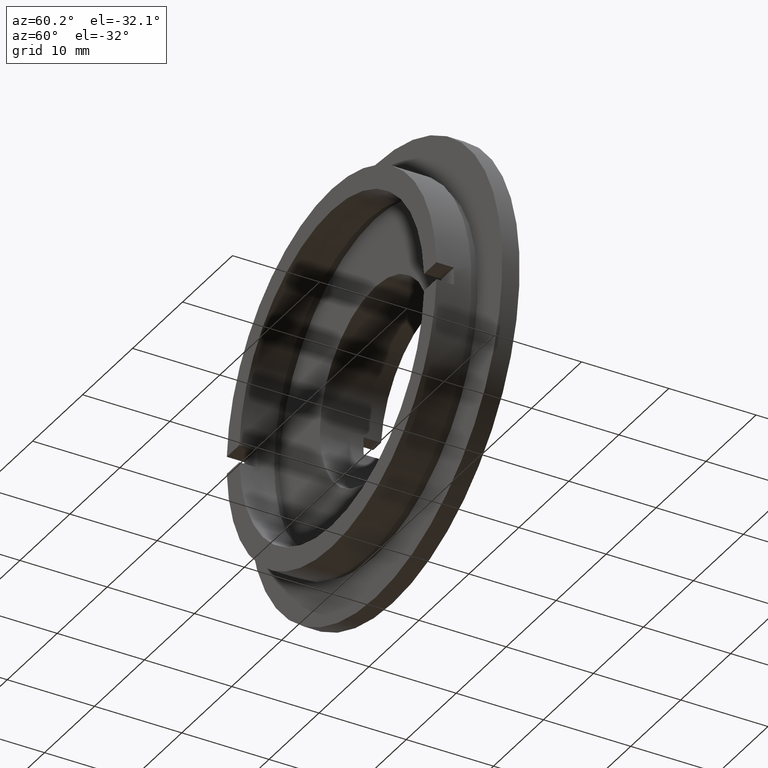
[diagram: clean part render]
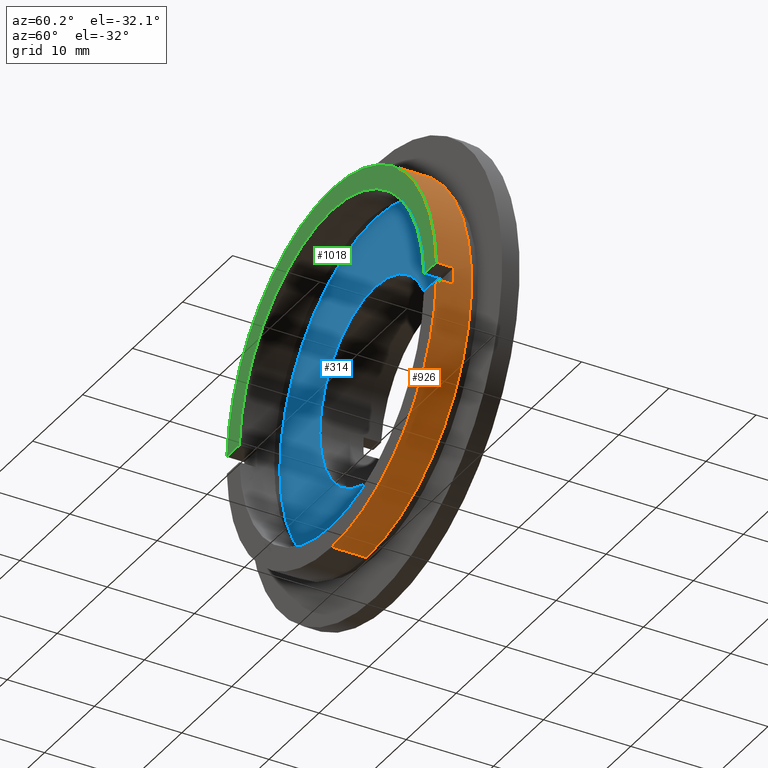
[diagram: same view with three faces highlighted in distinct colors, each labeled with its STEP entity id]
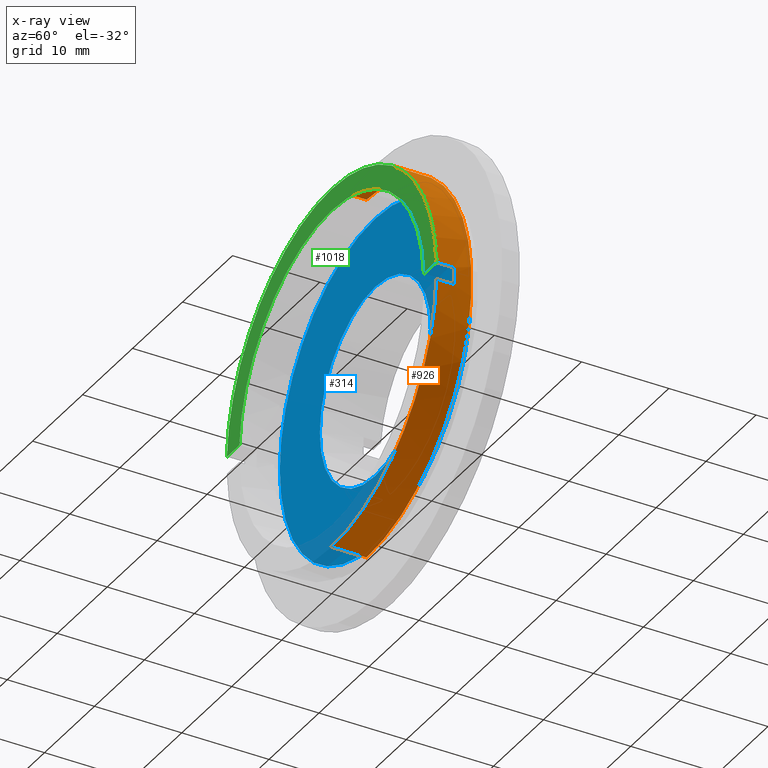
[diagram: x-ray of the same camera — body ghosted, the three highlighted faces saturated]
A machine part, auxiliary view with three faces highlighted in distinct colors.
The next image is the same camera in x-ray (body ghosted, the three faces saturated) — at least one of them is partly hidden behind the body in this view.
Their STEP definitions:

[orange] entity #926 — the highlighted cylindrical surface (partial cylindrical patch) has radius 21 mm, axis along (-0, 1, -0).
#29 = ORIENTED_EDGE ( 'NONE', *, *, #58, .F. ) ;
#46 = CARTESIAN_POINT ( 'NONE',  ( 0.0000000000000000000, 0.0000000000000000000, 20.99999999999999600 ) ) ;
#53 = EDGE_CURVE ( 'NONE', #515, #106, #812, .T. ) ;
#54 = ORIENTED_EDGE ( 'NONE', *, *, #53, .T. ) ;
#58 = EDGE_CURVE ( 'NONE', #1116, #815, #1170, .T. ) ;
#62 = LINE ( 'NONE', #547, #175 ) ;
#63 = EDGE_CURVE ( 'NONE', #107, #941, #1297, .T. ) ;
#106 = VERTEX_POINT ( 'NONE', #436 ) ;
#107 = VERTEX_POINT ( 'NONE', #46 ) ;
#175 = VECTOR ( 'NONE', #826, 1000.000000000000000 ) ;
#201 = EDGE_LOOP ( 'NONE', ( #54, #392, #1031, #325, #714, #29, #238, #618 ) ) ;
#238 = ORIENTED_EDGE ( 'NONE', *, *, #1189, .F. ) ;
#242 = LINE ( 'NONE', #749, #1022 ) ;
#243 = CARTESIAN_POINT ( 'NONE',  ( 0.0000000000000000000, 1.999999999999998200, 0.0000000000000000000 ) ) ;
#249 = DIRECTION ( 'NONE',  ( -2.220446049250313100E-014, 0.0000000000000000000, 1.000000000000000000 ) ) ;
#257 = DIRECTION ( 'NONE',  ( -0.0000000000000000000, -1.000000000000000000, -0.0000000000000000000 ) ) ;
#268 = VECTOR ( 'NONE', #928, 1000.000000000000000 ) ;
#280 = AXIS2_PLACEMENT_3D ( 'NONE', #1250, #1262, #1264 ) ;
#325 = ORIENTED_EDGE ( 'NONE', *, *, #63, .F. ) ;
#350 = VECTOR ( 'NONE', #1057, 1000.000000000000000 ) ;
#354 = CARTESIAN_POINT ( 'NONE',  ( 0.0000000000000000000, 0.0000000000000000000, 0.0000000000000000000 ) ) ;
#392 = ORIENTED_EDGE ( 'NONE', *, *, #951, .T. ) ;
#395 = CIRCLE ( 'NONE', #280, 20.99999999999999600 ) ;
#399 = EDGE_CURVE ( 'NONE', #941, #801, #395, .T. ) ;
#436 = CARTESIAN_POINT ( 'NONE',  ( 2.571758278209441300E-015, 0.0000000000000000000, -20.99999999999999600 ) ) ;
#457 = CARTESIAN_POINT ( 'NONE',  ( 20.97617696340303100, 0.0000000000000000000, -1.000000000000000000 ) ) ;
#467 = CARTESIAN_POINT ( 'NONE',  ( 20.97617696340303100, 1.999999999999998200, 1.000000000000000200 ) ) ;
#475 = CIRCLE ( 'NONE', #883, 20.99999999999999600 ) ;
#515 = VERTEX_POINT ( 'NONE', #457 ) ;
#547 = CARTESIAN_POINT ( 'NONE',  ( 20.97617696340302700, 22.67749945107591400, -0.9999999999999943400 ) ) ;
#609 = CARTESIAN_POINT ( 'NONE',  ( 20.97617696340302400, 2.000000000000000000, -0.9999999999999995600 ) ) ;
#610 = AXIS2_PLACEMENT_3D ( 'NONE', #354, #1074, #1010 ) ;
#618 = ORIENTED_EDGE ( 'NONE', *, *, #710, .F. ) ;
#633 = DIRECTION ( 'NONE',  ( -0.0000000000000000000, 1.000000000000000000, -0.0000000000000000000 ) ) ;
#642 = AXIS2_PLACEMENT_3D ( 'NONE', #243, #257, #249 ) ;
#678 = CARTESIAN_POINT ( 'NONE',  ( 0.0000000000000000000, 4.000000000000000000, 20.99999999999999600 ) ) ;
#684 = DIRECTION ( 'NONE',  ( 0.0000000000000000000, 0.0000000000000000000, 1.000000000000000000 ) ) ;
#710 = EDGE_CURVE ( 'NONE', #515, #960, #62, .T. ) ;
#714 = ORIENTED_EDGE ( 'NONE', *, *, #1062, .T. ) ;
#749 = CARTESIAN_POINT ( 'NONE',  ( 2.571758278209441300E-015, 22.67749945107591400, -20.99999999999999600 ) ) ;
#753 = DIRECTION ( 'NONE',  ( 0.0000000000000000000, 0.0000000000000000000, 1.000000000000000000 ) ) ;
#762 = DIRECTION ( 'NONE',  ( -0.0000000000000000000, 1.000000000000000000, -0.0000000000000000000 ) ) ;
#776 = CIRCLE ( 'NONE', #642, 20.99999999999999600 ) ;
#793 = CARTESIAN_POINT ( 'NONE',  ( 0.0000000000000000000, 22.67749945107591400, 0.0000000000000000000 ) ) ;
#801 = VERTEX_POINT ( 'NONE', #1124 ) ;
#812 = CIRCLE ( 'NONE', #610, 20.99999999999999600 ) ;
#815 = VERTEX_POINT ( 'NONE', #1127 ) ;
#826 = DIRECTION ( 'NONE',  ( -0.0000000000000000000, 1.000000000000000000, -0.0000000000000000000 ) ) ;
#841 = FACE_OUTER_BOUND ( 'NONE', #201, .T. ) ;
#855 = DIRECTION ( 'NONE',  ( -0.0000000000000000000, 1.000000000000000000, -0.0000000000000000000 ) ) ;
#883 = AXIS2_PLACEMENT_3D ( 'NONE', #977, #855, #753 ) ;
#926 = ADVANCED_FACE ( 'NONE', ( #841 ), #1290, .T. ) ;
#928 = DIRECTION ( 'NONE',  ( -0.0000000000000000000, 1.000000000000000000, -0.0000000000000000000 ) ) ;
#941 = VERTEX_POINT ( 'NONE', #678 ) ;
#951 = EDGE_CURVE ( 'NONE', #106, #801, #242, .T. ) ;
#960 = VERTEX_POINT ( 'NONE', #609 ) ;
#977 = CARTESIAN_POINT ( 'NONE',  ( 0.0000000000000000000, 0.0000000000000000000, 0.0000000000000000000 ) ) ;
#1010 = DIRECTION ( 'NONE',  ( 0.0000000000000000000, 0.0000000000000000000, 1.000000000000000000 ) ) ;
#1022 = VECTOR ( 'NONE', #633, 1000.000000000000000 ) ;
#1023 = CARTESIAN_POINT ( 'NONE',  ( 0.0000000000000000000, 22.67749945107591400, 20.99999999999999600 ) ) ;
#1031 = ORIENTED_EDGE ( 'NONE', *, *, #399, .F. ) ;
#1057 = DIRECTION ( 'NONE',  ( 0.0000000000000000000, -1.000000000000000000, 0.0000000000000000000 ) ) ;
#1062 = EDGE_CURVE ( 'NONE', #107, #815, #475, .T. ) ;
#1074 = DIRECTION ( 'NONE',  ( -0.0000000000000000000, 1.000000000000000000, -0.0000000000000000000 ) ) ;
#1116 = VERTEX_POINT ( 'NONE', #467 ) ;
#1124 = CARTESIAN_POINT ( 'NONE',  ( 2.571758278209441300E-015, 4.000000000000000000, -20.99999999999999600 ) ) ;
#1127 = CARTESIAN_POINT ( 'NONE',  ( 20.97617696340303100, 0.0000000000000000000, 1.000000000000000000 ) ) ;
#1170 = LINE ( 'NONE', #1300, #350 ) ;
#1182 = AXIS2_PLACEMENT_3D ( 'NONE', #793, #762, #684 ) ;
#1189 = EDGE_CURVE ( 'NONE', #960, #1116, #776, .T. ) ;
#1250 = CARTESIAN_POINT ( 'NONE',  ( 0.0000000000000000000, 4.000000000000000000, 0.0000000000000000000 ) ) ;
#1262 = DIRECTION ( 'NONE',  ( -0.0000000000000000000, 1.000000000000000000, -0.0000000000000000000 ) ) ;
#1264 = DIRECTION ( 'NONE',  ( 0.0000000000000000000, 0.0000000000000000000, 1.000000000000000000 ) ) ;
#1290 = CYLINDRICAL_SURFACE ( 'NONE', #1182, 20.99999999999999600 ) ;
#1297 = LINE ( 'NONE', #1023, #268 ) ;
#1300 = CARTESIAN_POINT ( 'NONE',  ( 20.97617696340303100, 22.67749945107591400, 1.000000000000003800 ) ) ;

[blue] entity #314 — the highlighted planar face has unit normal (0, -1, 0).
#12 = DIRECTION ( 'NONE',  ( -0.0000000000000000000, 1.000000000000000000, -0.0000000000000000000 ) ) ;
#16 = DIRECTION ( 'NONE',  ( 0.0000000000000000000, -0.0000000000000000000, -1.000000000000000000 ) ) ;
#23 = CARTESIAN_POINT ( 'NONE',  ( 0.0000000000000000000, 5.000000000000000900, 0.0000000000000000000 ) ) ;
#31 = AXIS2_PLACEMENT_3D ( 'NONE', #23, #12, #47 ) ;
#42 = PLANE ( 'NONE',  #1191 ) ;
#47 = DIRECTION ( 'NONE',  ( 0.0000000000000000000, 0.0000000000000000000, 1.000000000000000000 ) ) ;
#91 = CARTESIAN_POINT ( 'NONE',  ( 0.0000000000000000000, 5.000000000000000900, 11.09999999999999800 ) ) ;
#101 = ORIENTED_EDGE ( 'NONE', *, *, #1114, .T. ) ;
#133 = DIRECTION ( 'NONE',  ( 0.0000000000000000000, -1.000000000000000000, 0.0000000000000000000 ) ) ;
#154 = DIRECTION ( 'NONE',  ( 0.0000000000000000000, 0.0000000000000000000, 1.000000000000000000 ) ) ;
#229 = CARTESIAN_POINT ( 'NONE',  ( 0.0000000000000000000, 5.000000000000000900, 0.0000000000000000000 ) ) ;
#236 = DIRECTION ( 'NONE',  ( -0.0000000000000000000, 1.000000000000000000, -0.0000000000000000000 ) ) ;
#263 = AXIS2_PLACEMENT_3D ( 'NONE', #628, #236, #1311 ) ;
#285 = CARTESIAN_POINT ( 'NONE',  ( 0.0000000000000000000, 5.000000000000000900, 0.0000000000000000000 ) ) ;
#314 = ADVANCED_FACE ( 'NONE', ( #1117, #1306 ), #42, .T. ) ;
#352 = CARTESIAN_POINT ( 'NONE',  ( 2.339075386371445100E-015, 5.000000000000000900, -19.10000000000000100 ) ) ;
#365 = ORIENTED_EDGE ( 'NONE', *, *, #730, .F. ) ;
#415 = VERTEX_POINT ( 'NONE', #1058 ) ;
#485 = VERTEX_POINT ( 'NONE', #91 ) ;
#544 = CARTESIAN_POINT ( 'NONE',  ( -11.09999999999999800, 4.999999999999999100, 0.0000000000000000000 ) ) ;
#624 = ORIENTED_EDGE ( 'NONE', *, *, #1136, .T. ) ;
#628 = CARTESIAN_POINT ( 'NONE',  ( 0.0000000000000000000, 5.000000000000000900, 0.0000000000000000000 ) ) ;
#636 = CIRCLE ( 'NONE', #31, 11.09999999999999800 ) ;
#697 = CARTESIAN_POINT ( 'NONE',  ( 0.0000000000000000000, 5.000000000000000900, 19.10000000000000100 ) ) ;
#704 = VERTEX_POINT ( 'NONE', #697 ) ;
#730 = EDGE_CURVE ( 'NONE', #824, #704, #936, .T. ) ;
#755 = ORIENTED_EDGE ( 'NONE', *, *, #766, .F. ) ;
#766 = EDGE_CURVE ( 'NONE', #704, #824, #1139, .T. ) ;
#796 = DIRECTION ( 'NONE',  ( -0.0000000000000000000, 1.000000000000000000, -0.0000000000000000000 ) ) ;
#824 = VERTEX_POINT ( 'NONE', #352 ) ;
#936 = CIRCLE ( 'NONE', #1173, 19.10000000000000100 ) ;
#964 = AXIS2_PLACEMENT_3D ( 'NONE', #229, #796, #154 ) ;
#988 = DIRECTION ( 'NONE',  ( -0.0000000000000000000, 1.000000000000000000, -0.0000000000000000000 ) ) ;
#992 = EDGE_LOOP ( 'NONE', ( #101, #624 ) ) ;
#1044 = EDGE_LOOP ( 'NONE', ( #755, #365 ) ) ;
#1058 = CARTESIAN_POINT ( 'NONE',  ( 1.359357947053562000E-015, 5.000000000000000900, -11.09999999999999800 ) ) ;
#1079 = CIRCLE ( 'NONE', #964, 11.09999999999999800 ) ;
#1114 = EDGE_CURVE ( 'NONE', #485, #415, #1079, .T. ) ;
#1117 = FACE_BOUND ( 'NONE', #992, .T. ) ;
#1136 = EDGE_CURVE ( 'NONE', #415, #485, #636, .T. ) ;
#1139 = CIRCLE ( 'NONE', #263, 19.10000000000000100 ) ;
#1173 = AXIS2_PLACEMENT_3D ( 'NONE', #285, #988, #1263 ) ;
#1191 = AXIS2_PLACEMENT_3D ( 'NONE', #544, #133, #16 ) ;
#1263 = DIRECTION ( 'NONE',  ( 0.0000000000000000000, 0.0000000000000000000, 1.000000000000000000 ) ) ;
#1306 = FACE_OUTER_BOUND ( 'NONE', #1044, .T. ) ;
#1311 = DIRECTION ( 'NONE',  ( 0.0000000000000000000, 0.0000000000000000000, 1.000000000000000000 ) ) ;

[green] entity #1018 — the highlighted planar face has unit normal (0, -1, 0).
#15 = ORIENTED_EDGE ( 'NONE', *, *, #1255, .T. ) ;
#46 = CARTESIAN_POINT ( 'NONE',  ( 0.0000000000000000000, 0.0000000000000000000, 20.99999999999999600 ) ) ;
#65 = CIRCLE ( 'NONE', #1273, 18.49999999999999600 ) ;
#82 = DIRECTION ( 'NONE',  ( 0.0000000000000000000, -0.0000000000000000000, -1.000000000000000000 ) ) ;
#93 = PLANE ( 'NONE',  #732 ) ;
#107 = VERTEX_POINT ( 'NONE', #46 ) ;
#122 = VERTEX_POINT ( 'NONE', #1131 ) ;
#123 = DIRECTION ( 'NONE',  ( -0.0000000000000000000, 1.000000000000000000, -0.0000000000000000000 ) ) ;
#140 = ORIENTED_EDGE ( 'NONE', *, *, #984, .F. ) ;
#155 = LINE ( 'NONE', #1088, #427 ) ;
#165 = FACE_OUTER_BOUND ( 'NONE', #1235, .T. ) ;
#212 = CARTESIAN_POINT ( 'NONE',  ( 0.0000000000000000000, 0.0000000000000000000, 0.0000000000000000000 ) ) ;
#240 = CIRCLE ( 'NONE', #1122, 18.49999999999999600 ) ;
#272 = CARTESIAN_POINT ( 'NONE',  ( -20.99999999999999600, 0.0000000000000000000, 0.0000000000000000000 ) ) ;
#289 = DIRECTION ( 'NONE',  ( 0.0000000000000000000, 0.0000000000000000000, 1.000000000000000000 ) ) ;
#369 = ORIENTED_EDGE ( 'NONE', *, *, #1062, .F. ) ;
#379 = VERTEX_POINT ( 'NONE', #666 ) ;
#386 = DIRECTION ( 'NONE',  ( -1.000000000000000000, 0.0000000000000000000, 0.0000000000000000000 ) ) ;
#422 = EDGE_CURVE ( 'NONE', #815, #1325, #155, .T. ) ;
#427 = VECTOR ( 'NONE', #1137, 1000.000000000000000 ) ;
#475 = CIRCLE ( 'NONE', #883, 20.99999999999999600 ) ;
#482 = CARTESIAN_POINT ( 'NONE',  ( 0.0000000000000000000, 0.0000000000000000000, 0.0000000000000000000 ) ) ;
#494 = VECTOR ( 'NONE', #386, 1000.000000000000000 ) ;
#502 = CARTESIAN_POINT ( 'NONE',  ( 0.0000000000000000000, 0.0000000000000000000, 18.49999999999999600 ) ) ;
#508 = DIRECTION ( 'NONE',  ( -0.0000000000000000000, 1.000000000000000000, -0.0000000000000000000 ) ) ;
#522 = AXIS2_PLACEMENT_3D ( 'NONE', #212, #123, #1011 ) ;
#531 = ORIENTED_EDGE ( 'NONE', *, *, #1323, .T. ) ;
#552 = DIRECTION ( 'NONE',  ( 0.0000000000000000000, -1.000000000000000000, 0.0000000000000000000 ) ) ;
#666 = CARTESIAN_POINT ( 'NONE',  ( -18.47295320191116000, 0.0000000000000000000, 1.000000000000003800 ) ) ;
#712 = CARTESIAN_POINT ( 'NONE',  ( -20.99999999999999600, 0.0000000000000000000, 1.000000000000000000 ) ) ;
#732 = AXIS2_PLACEMENT_3D ( 'NONE', #272, #552, #82 ) ;
#753 = DIRECTION ( 'NONE',  ( 0.0000000000000000000, 0.0000000000000000000, 1.000000000000000000 ) ) ;
#768 = EDGE_CURVE ( 'NONE', #122, #107, #1123, .T. ) ;
#781 = CARTESIAN_POINT ( 'NONE',  ( 18.47295320191116000, 0.0000000000000000000, 1.000000000000003800 ) ) ;
#815 = VERTEX_POINT ( 'NONE', #1127 ) ;
#819 = VERTEX_POINT ( 'NONE', #502 ) ;
#855 = DIRECTION ( 'NONE',  ( -0.0000000000000000000, 1.000000000000000000, -0.0000000000000000000 ) ) ;
#883 = AXIS2_PLACEMENT_3D ( 'NONE', #977, #855, #753 ) ;
#976 = ORIENTED_EDGE ( 'NONE', *, *, #422, .F. ) ;
#977 = CARTESIAN_POINT ( 'NONE',  ( 0.0000000000000000000, 0.0000000000000000000, 0.0000000000000000000 ) ) ;
#984 = EDGE_CURVE ( 'NONE', #379, #122, #1145, .T. ) ;
#1011 = DIRECTION ( 'NONE',  ( 0.0000000000000000000, 0.0000000000000000000, 1.000000000000000000 ) ) ;
#1018 = ADVANCED_FACE ( 'NONE', ( #165 ), #93, .T. ) ;
#1062 = EDGE_CURVE ( 'NONE', #107, #815, #475, .T. ) ;
#1088 = CARTESIAN_POINT ( 'NONE',  ( -20.99999999999999600, 0.0000000000000000000, 1.000000000000000000 ) ) ;
#1122 = AXIS2_PLACEMENT_3D ( 'NONE', #1229, #1214, #1210 ) ;
#1123 = CIRCLE ( 'NONE', #522, 20.99999999999999600 ) ;
#1127 = CARTESIAN_POINT ( 'NONE',  ( 20.97617696340303100, 0.0000000000000000000, 1.000000000000000000 ) ) ;
#1131 = CARTESIAN_POINT ( 'NONE',  ( -20.97617696340303100, 0.0000000000000000000, 1.000000000000000000 ) ) ;
#1137 = DIRECTION ( 'NONE',  ( -1.000000000000000000, 0.0000000000000000000, 0.0000000000000000000 ) ) ;
#1145 = LINE ( 'NONE', #712, #494 ) ;
#1193 = ORIENTED_EDGE ( 'NONE', *, *, #768, .F. ) ;
#1210 = DIRECTION ( 'NONE',  ( 0.0000000000000000000, 0.0000000000000000000, 1.000000000000000000 ) ) ;
#1214 = DIRECTION ( 'NONE',  ( -0.0000000000000000000, 1.000000000000000000, -0.0000000000000000000 ) ) ;
#1229 = CARTESIAN_POINT ( 'NONE',  ( 0.0000000000000000000, 0.0000000000000000000, 0.0000000000000000000 ) ) ;
#1235 = EDGE_LOOP ( 'NONE', ( #976, #369, #1193, #140, #15, #531 ) ) ;
#1255 = EDGE_CURVE ( 'NONE', #379, #819, #65, .T. ) ;
#1273 = AXIS2_PLACEMENT_3D ( 'NONE', #482, #508, #289 ) ;
#1323 = EDGE_CURVE ( 'NONE', #819, #1325, #240, .T. ) ;
#1325 = VERTEX_POINT ( 'NONE', #781 ) ;